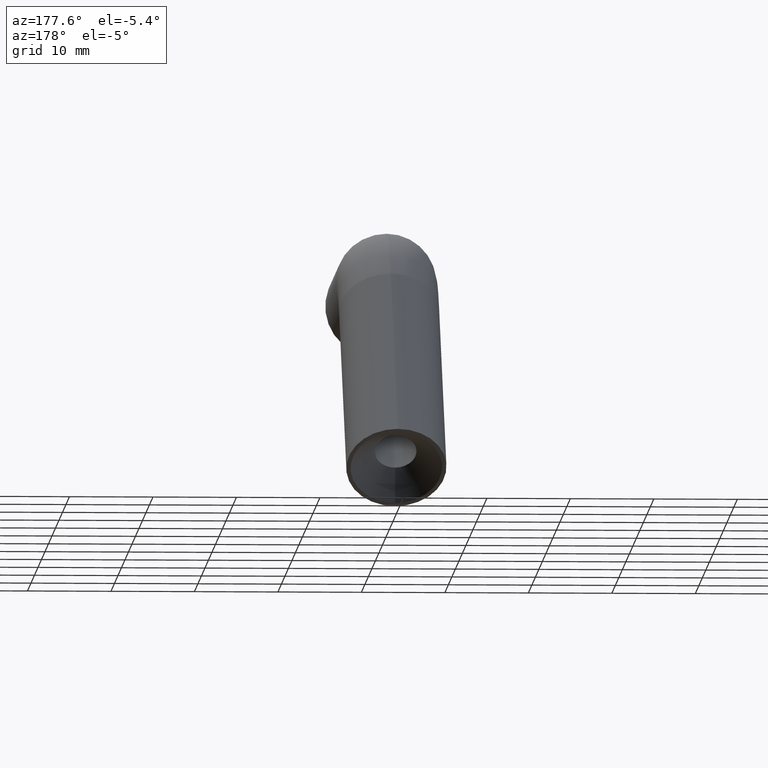
[diagram: clean part render]
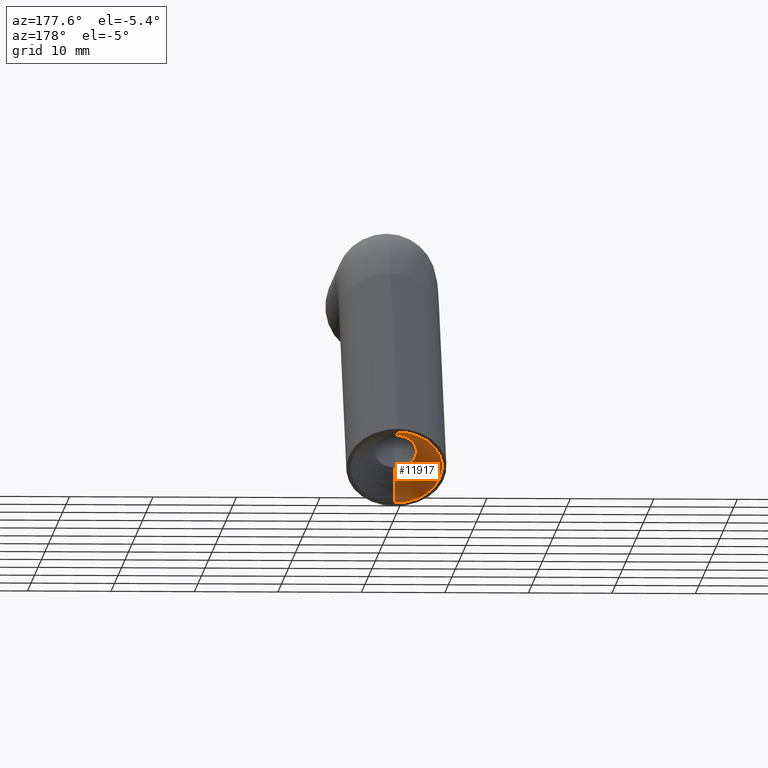
[diagram: same view with one face highlighted and labeled with its STEP entity id]
A machine part, auxiliary view. The second image highlights one B-rep face of the part: STEP entity #11917.
In plain terms, the highlighted conical surface has half-angle 45 deg.
Its self-contained STEP definition (entity closure, byte-faithful):
#254 = CARTESIAN_POINT ( 'NONE',  ( 6.735557395310444000E-016, 56.11091270347399300, -28.88908729652600700 ) ) ;
#610 = EDGE_CURVE ( 'NONE', #5021, #6908, #11503, .T. ) ;
#1083 = DIRECTION ( 'NONE',  ( 0.0000000000000000000, 1.000000000000000000, -1.221245327087672200E-015 ) ) ;
#1180 = LINE ( 'NONE', #7629, #8305 ) ;
#1407 = CARTESIAN_POINT ( 'NONE',  ( 0.0000000000000000000, 60.00000000000001400, -25.00000000000000000 ) ) ;
#3149 = EDGE_LOOP ( 'NONE', ( #11370, #14134, #10732, #8712 ) ) ;
#3279 = AXIS2_PLACEMENT_3D ( 'NONE', #1407, #3591, #10553 ) ;
#3591 = DIRECTION ( 'NONE',  ( -0.0000000000000000000, 0.7071067811865464600, -0.7071067811865486800 ) ) ;
#4377 = CARTESIAN_POINT ( 'NONE',  ( 0.0000000000000000000, 63.88908729652602100, -21.11091270347399600 ) ) ;
#4492 = EDGE_CURVE ( 'NONE', #7646, #7171, #13673, .T. ) ;
#5021 = VERTEX_POINT ( 'NONE', #9732 ) ;
#6253 = CONICAL_SURFACE ( 'NONE', #3279, 5.499999999999995600, 0.7853981633974487200 ) ;
#6465 = DIRECTION ( 'NONE',  ( 8.659560562354937800E-017, -1.942890293094023900E-015, -1.000000000000000000 ) ) ;
#6658 = AXIS2_PLACEMENT_3D ( 'NONE', #8231, #11535, #8371 ) ;
#6782 = VECTOR ( 'NONE', #1083, 1000.000000000000000 ) ;
#6908 = VERTEX_POINT ( 'NONE', #9886 ) ;
#7045 = EDGE_CURVE ( 'NONE', #6908, #7646, #1180, .T. ) ;
#7171 = VERTEX_POINT ( 'NONE', #12158 ) ;
#7257 = CARTESIAN_POINT ( 'NONE',  ( 0.0000000000000000000, 60.00000000000001400, -25.00000000000000000 ) ) ;
#7629 = CARTESIAN_POINT ( 'NONE',  ( 6.735557395310443000E-016, 56.11091270347399300, -28.88908729652600700 ) ) ;
#7646 = VERTEX_POINT ( 'NONE', #254 ) ;
#8231 = CARTESIAN_POINT ( 'NONE',  ( 0.0000000000000000000, 57.87867965644036900, -22.87867965644035100 ) ) ;
#8305 = VECTOR ( 'NONE', #6465, 1000.000000000000000 ) ;
#8371 = DIRECTION ( 'NONE',  ( 0.0000000000000000000, 0.7071067811865489100, 0.7071067811865462400 ) ) ;
#8712 = ORIENTED_EDGE ( 'NONE', *, *, #11558, .F. ) ;
#9354 = DIRECTION ( 'NONE',  ( -0.0000000000000000000, 0.7071067811865464600, -0.7071067811865486800 ) ) ;
#9732 = CARTESIAN_POINT ( 'NONE',  ( 0.0000000000000000000, 59.64644660940673800, -21.11091270347398900 ) ) ;
#9886 = CARTESIAN_POINT ( 'NONE',  ( 4.898587196589403000E-016, 56.11091270347400000, -24.64644660940671300 ) ) ;
#10417 = LINE ( 'NONE', #4377, #6782 ) ;
#10553 = DIRECTION ( 'NONE',  ( 0.0000000000000000000, 0.7071067811865481300, 0.7071067811865469100 ) ) ;
#10590 = DIRECTION ( 'NONE',  ( 0.0000000000000000000, 0.7071067811865481300, 0.7071067811865469100 ) ) ;
#10732 = ORIENTED_EDGE ( 'NONE', *, *, #4492, .T. ) ;
#11207 = AXIS2_PLACEMENT_3D ( 'NONE', #7257, #9354, #10590 ) ;
#11370 = ORIENTED_EDGE ( 'NONE', *, *, #610, .T. ) ;
#11503 = CIRCLE ( 'NONE', #6658, 2.499999999999996000 ) ;
#11535 = DIRECTION ( 'NONE',  ( 0.0000000000000000000, -0.7071067811865464600, 0.7071067811865486800 ) ) ;
#11558 = EDGE_CURVE ( 'NONE', #5021, #7171, #10417, .T. ) ;
#11917 = ADVANCED_FACE ( 'NONE', ( #12478 ), #6253, .F. ) ;
#12158 = CARTESIAN_POINT ( 'NONE',  ( 0.0000000000000000000, 63.88908729652602100, -21.11091270347399600 ) ) ;
#12478 = FACE_OUTER_BOUND ( 'NONE', #3149, .T. ) ;
#13673 = CIRCLE ( 'NONE', #11207, 5.499999999999995600 ) ;
#14134 = ORIENTED_EDGE ( 'NONE', *, *, #7045, .T. ) ;